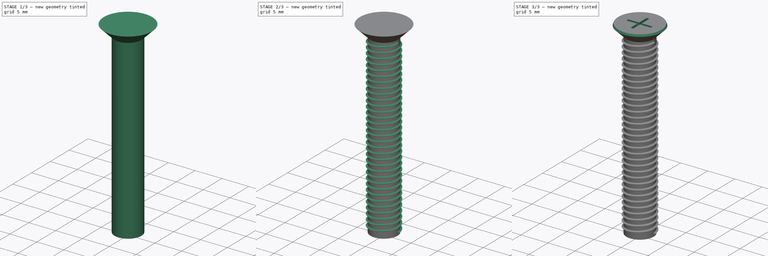
[diagram: build sequence overview — one tinted view per stage of 3, left to right]
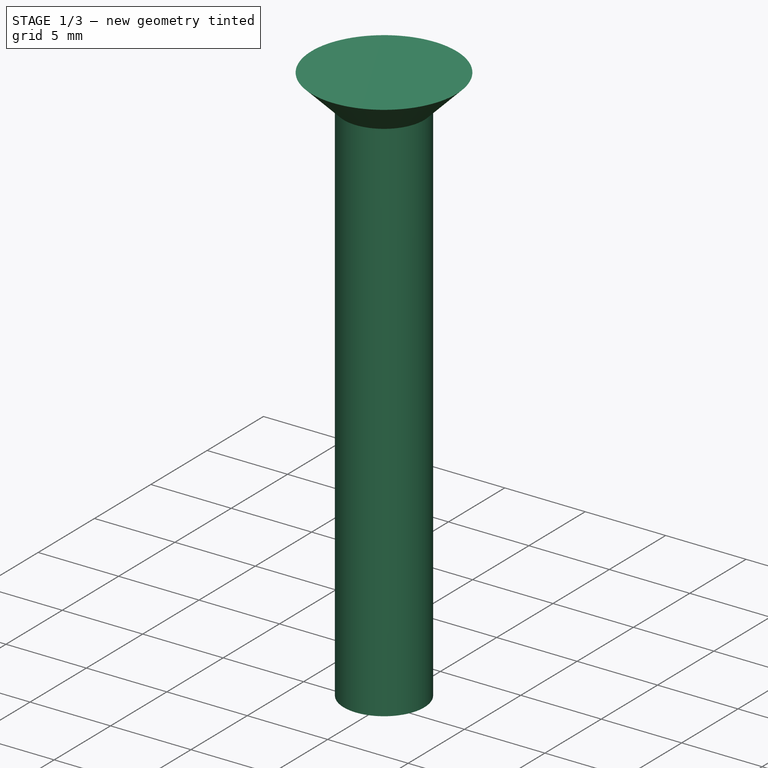
[diagram: stage 1 of 3 — iso view after this stage's code; geometry added in this stage tinted green]
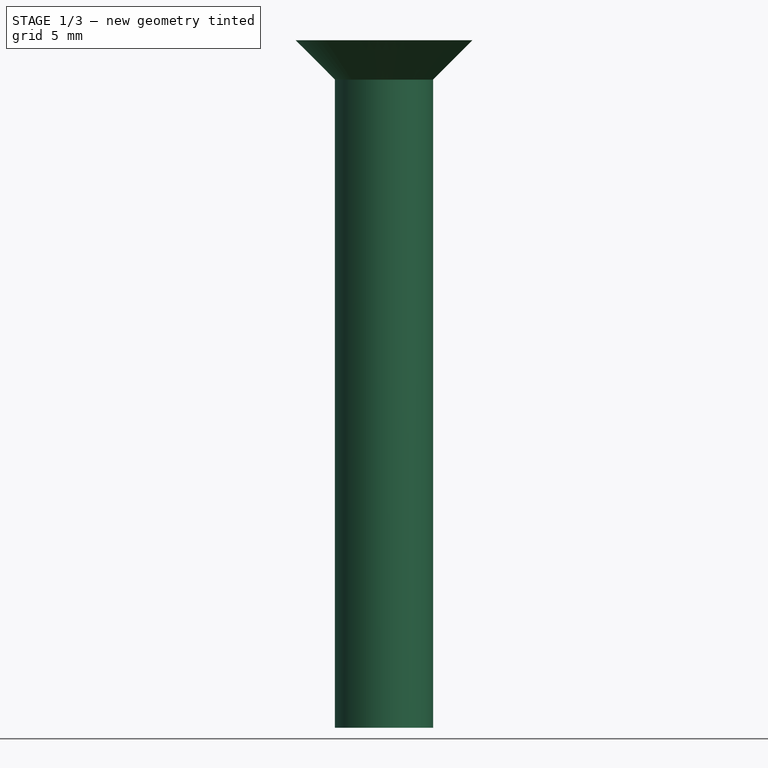
[diagram: stage 1 of 3 — front view after this stage's code; geometry added in this stage tinted green]
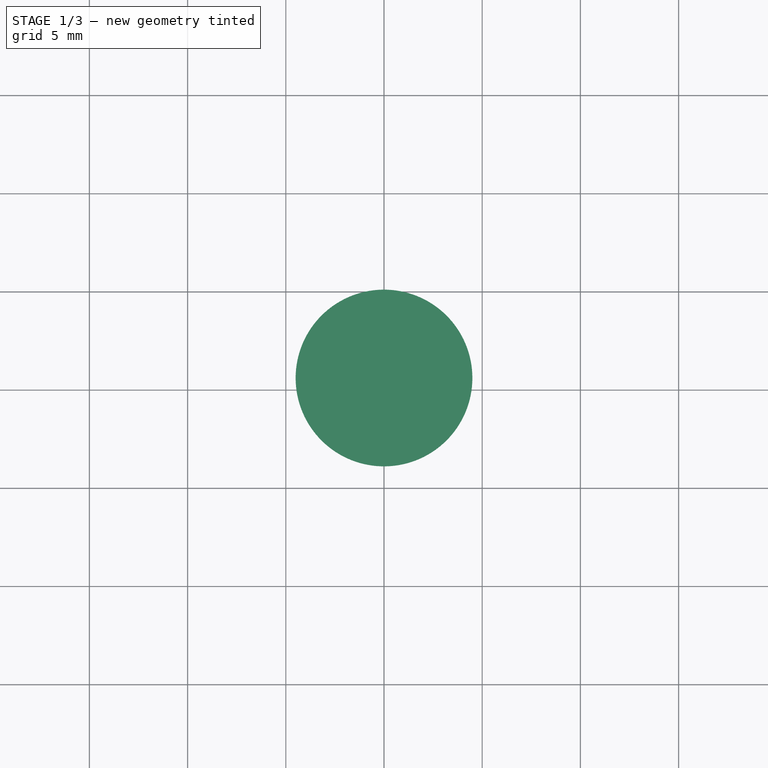
[diagram: stage 1 of 3 — top view after this stage's code; geometry added in this stage tinted green]
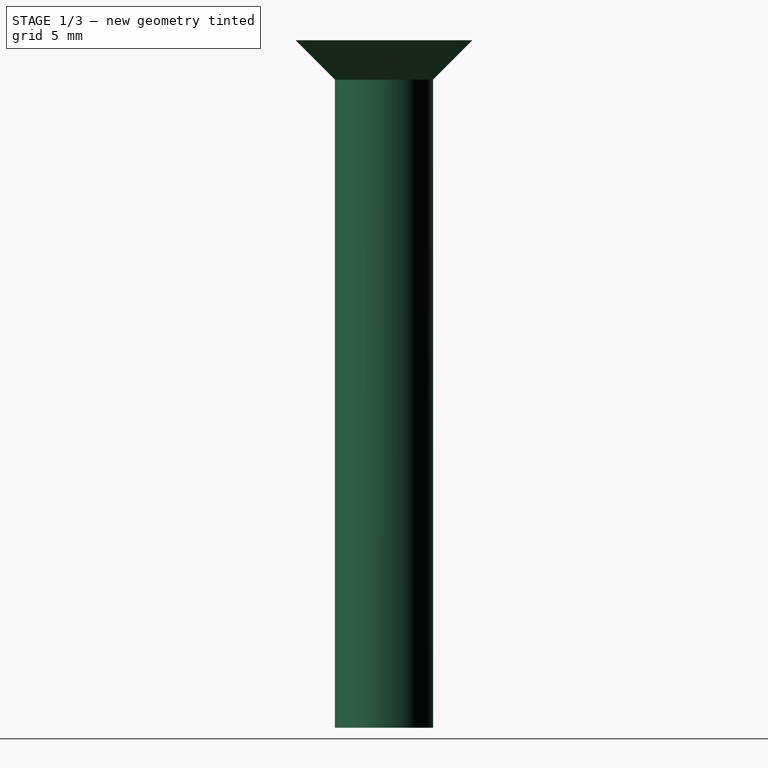
[diagram: stage 1 of 3 — right view after this stage's code; geometry added in this stage tinted green]
FCSTD DOCUMENT  (FreeCAD 0.15R4671 (Git))
Label: 5x33
License: All rights reserved
LicenseURL: http://en.wikipedia.org/wiki/All_rights_reserved
objects: Sketcher::SketchObject×2, Part::MultiFuse×2, Part::Helix×1, Part::Sweep×1, Part::Cylinder×1, Part::Cone×1, PartDesign::Pocket×1, PartDesign::Chamfer×1
note: 11 computed .brp shape members not serialized (recipe doc carries the construction recipe); baked Part::Feature solids carry a one-line shape summary decoded from their .brp

FEATURE [Part::Cylinder] Cylinder
  Angle = 360
  Height = 33
  Placement = pos=(0,0,-0.5) rot=(0,0,1;0rad)
  Radius = 2.5
FEATURE [Part::Cone] Cone
  Angle = 360
  Height = 2
  Placement = pos=(0,0,32.5) rot=(0,0,1;0rad)
  Radius1 = 2.5
  Radius2 = 4.5
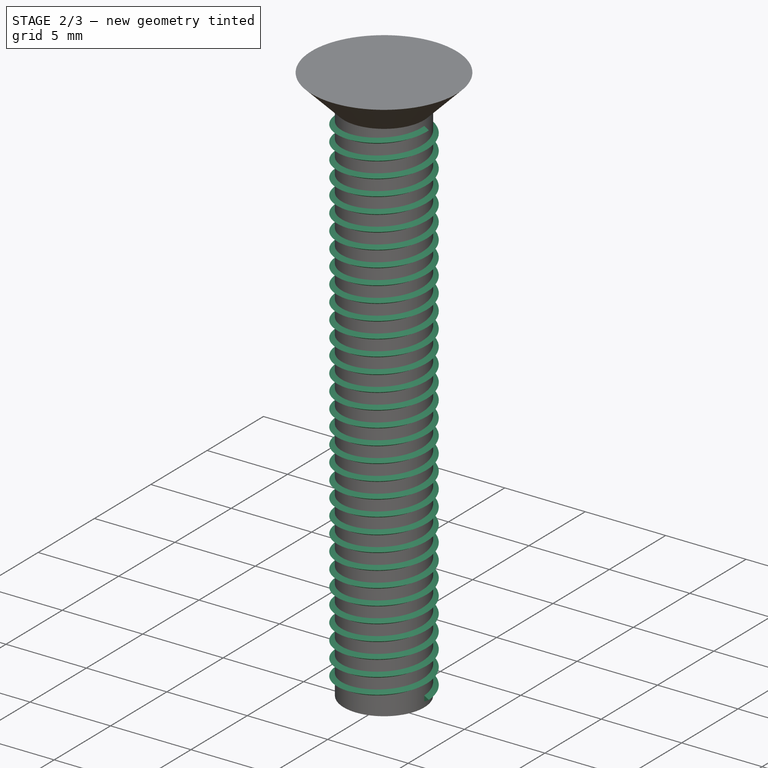
[diagram: stage 2 of 3 — iso view after this stage's code; geometry added in this stage tinted green]
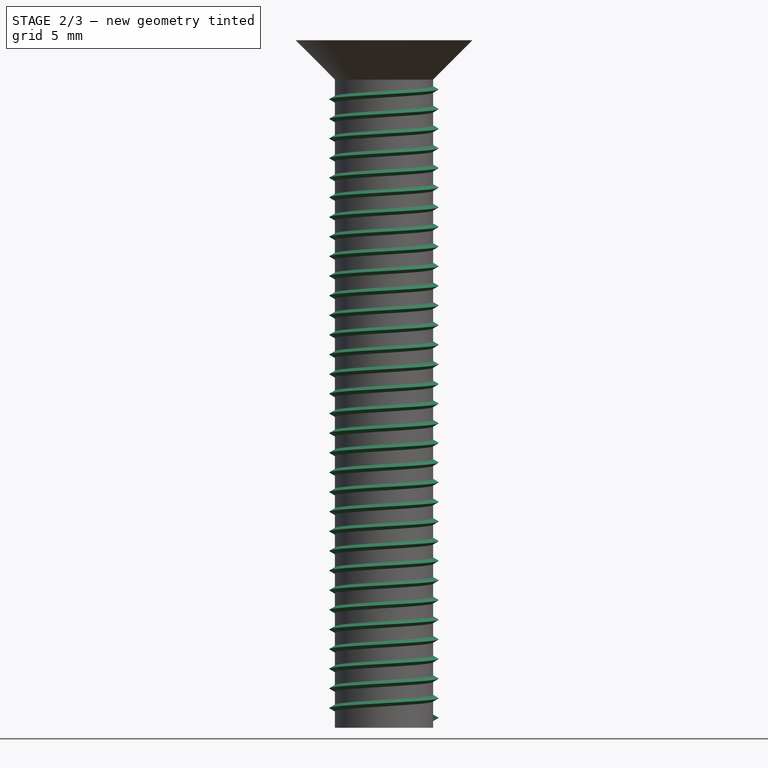
[diagram: stage 2 of 3 — front view after this stage's code; geometry added in this stage tinted green]
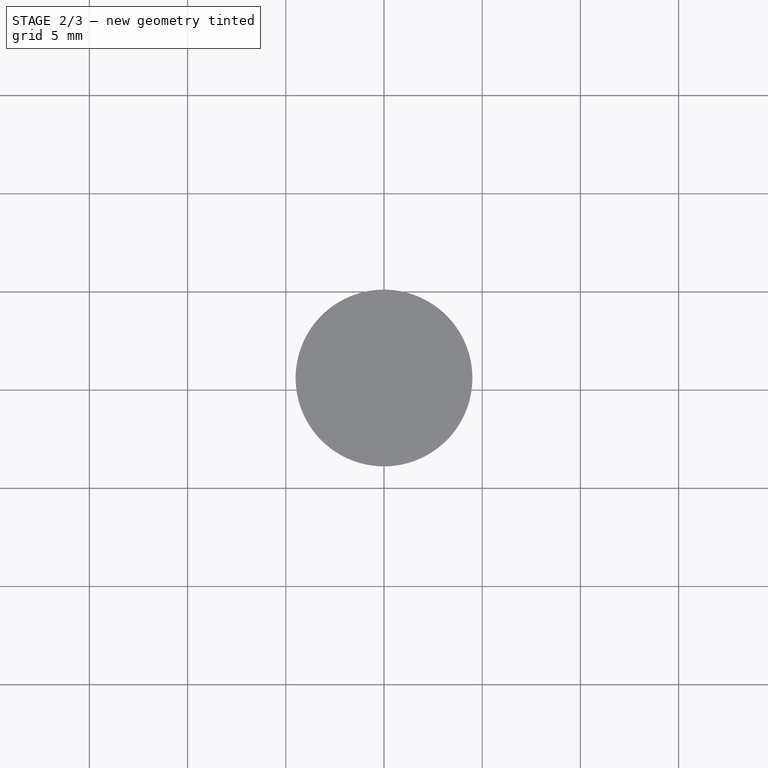
[diagram: stage 2 of 3 — top view after this stage's code; geometry added in this stage tinted green]
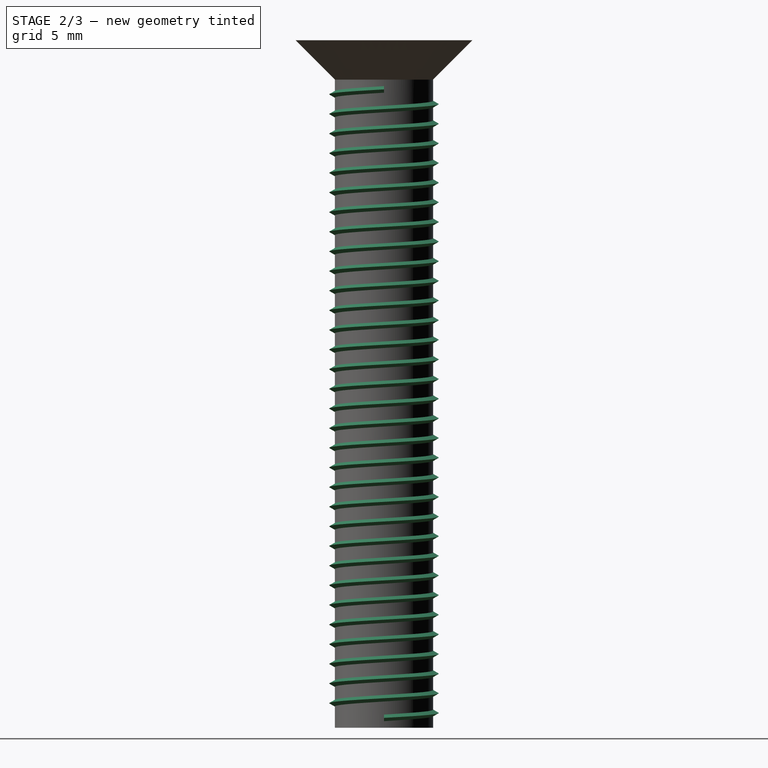
[diagram: stage 2 of 3 — right view after this stage's code; geometry added in this stage tinted green]
FEATURE [Part::Helix] Helix
  Angle = 0
  Height = 32
  LocalCoord = 0
  Pitch = 1
  Radius = 2.5
  Style = 1
FEATURE [Sketcher::SketchObject] Sketch
  Placement = pos=(0,0,0) rot=(1,0,0;1.5708rad)
  sketch-geometry (4):
    g0: LineSegment StartX=2.35566 StartY=0.25 StartZ=0 EndX=2.35566 EndY=-0.25 EndZ=0
    g1: LineSegment StartX=2.35566 StartY=-0.25 StartZ=0 EndX=2.78868 EndY=0 EndZ=0
    g2: LineSegment StartX=2.78868 StartY=0 StartZ=0 EndX=2.35566 EndY=0.25 EndZ=0
    g3: Circle [constr] CenterX=2.5 CenterY=0 CenterZ=0 NormalX=0 NormalY=0 NormalZ=1 Radius=0.288675
  constraints (13):
    c: Coincident(g0,g1)
    c: Coincident(g1,g2)
    c: Coincident(g2,g0)
    c: Equal(g0,g1)
    c: Equal(g0,g2)
    c: PointOnObject(g0,g3)
    c: PointOnObject(g1,g3)
    c: PointOnObject(g2,g3)
    c: PointOnObject(g0,g-1)
    c: PointOnObject(g3,g-1)
    c: PointOnObject(g1,g-1)
    c: DistanceX(g-1,g3) = 2.5
    c: DistanceY(g0) = -0.5
FEATURE [Part::Sweep] Sweep
  Frenet = true
  Sections = -> [Sketch]
  Solid = true
  Spine = -> Helix
  Transition = 1
FEATURE [Part::MultiFuse] Fusion
  Shapes = -> [Cylinder,Sweep]
FEATURE [Part::MultiFuse] Fusion001
  Shapes = -> [Cone,Fusion]
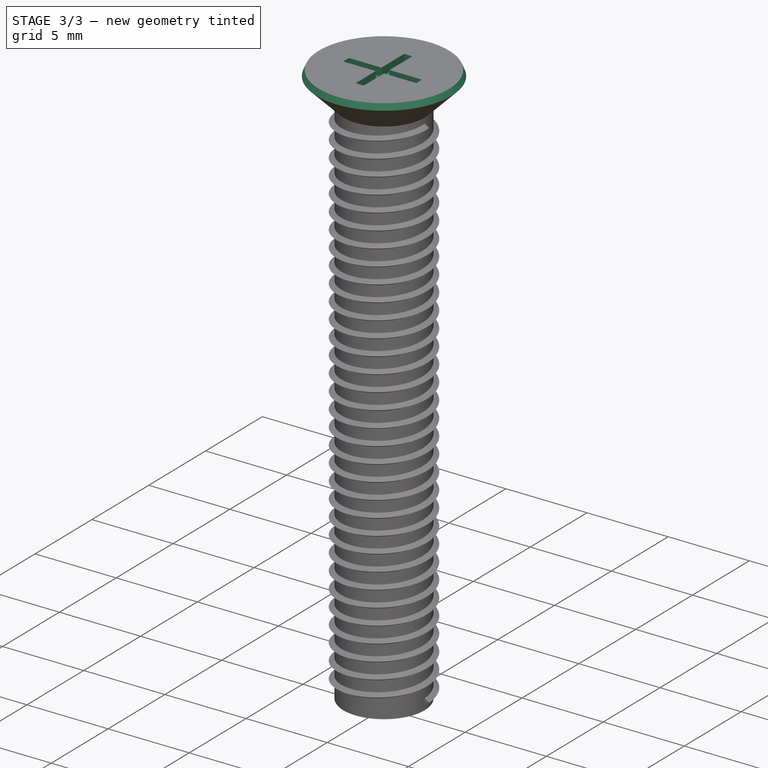
[diagram: stage 3 of 3 — iso view after this stage's code; geometry added in this stage tinted green]
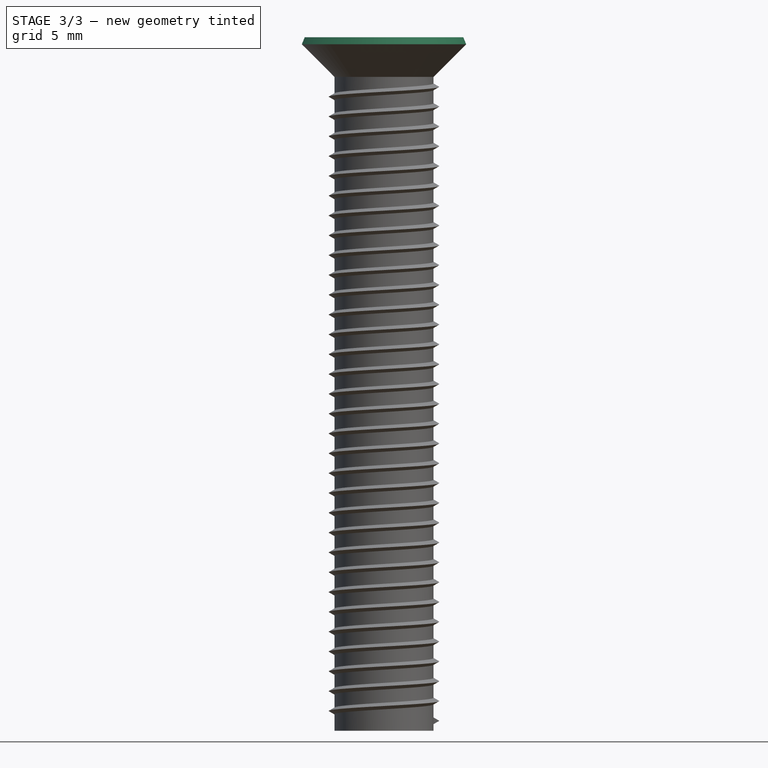
[diagram: stage 3 of 3 — front view after this stage's code; geometry added in this stage tinted green]
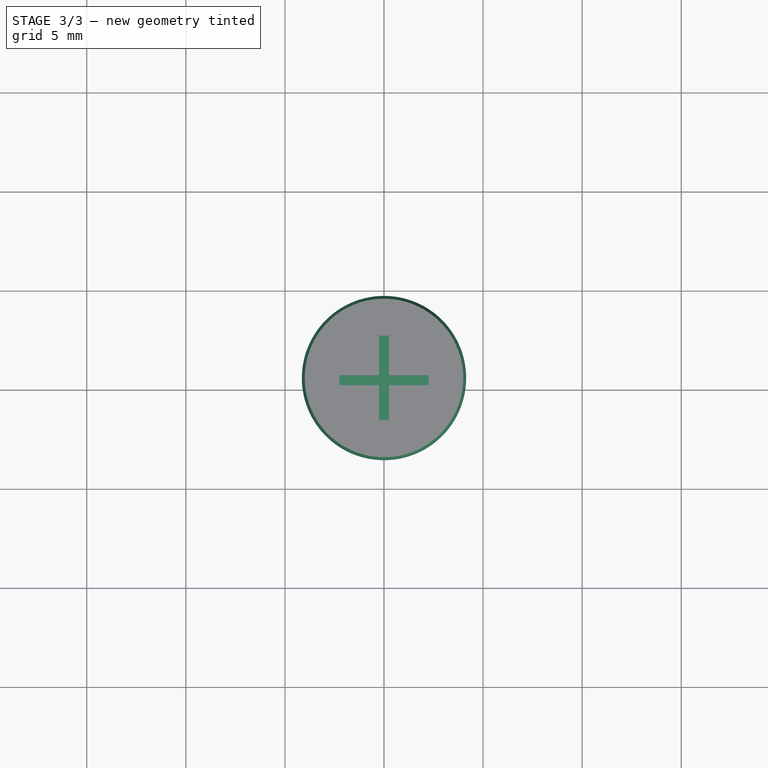
[diagram: stage 3 of 3 — top view after this stage's code; geometry added in this stage tinted green]
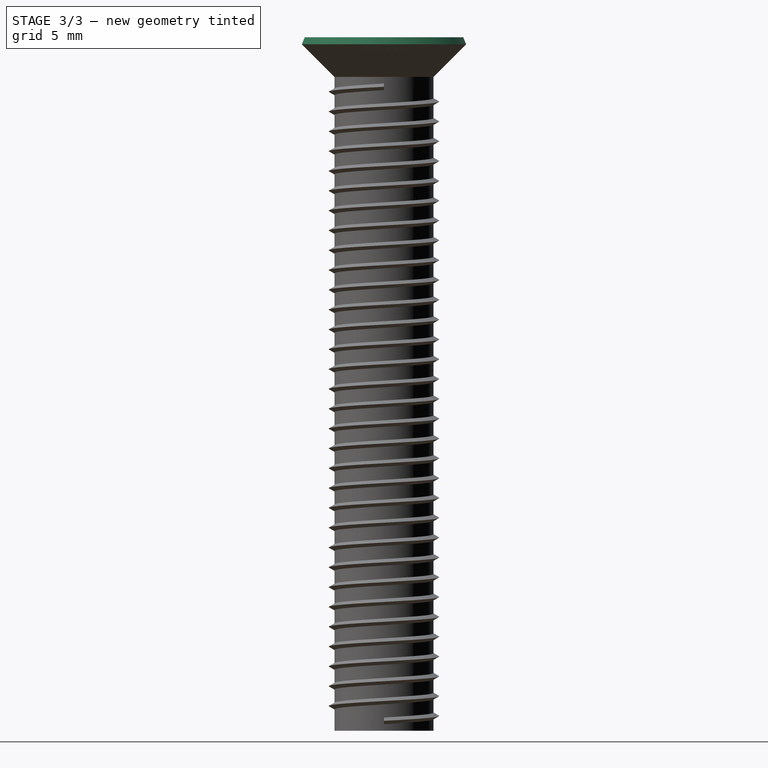
[diagram: stage 3 of 3 — right view after this stage's code; geometry added in this stage tinted green]
FEATURE [Sketcher::SketchObject] Sketch001
  Placement = pos=(0,0,34.5) rot=(0,0,1;0rad)
  Support = -> Fusion001 [Face1]
  sketch-geometry (12):
    g0: LineSegment StartX=-0.25 StartY=2.13058 StartZ=0 EndX=0.25 EndY=2.13058 EndZ=0
    g1: LineSegment StartX=0.25 StartY=2.13058 StartZ=0 EndX=0.25 EndY=0.130584 EndZ=0
    g2: LineSegment StartX=0.25 StartY=0.130584 StartZ=0 EndX=2.25 EndY=0.130584 EndZ=0
    g3: LineSegment StartX=2.25 StartY=0.130584 StartZ=0 EndX=2.25 EndY=-0.369416 EndZ=0
    g4: LineSegment StartX=2.25 StartY=-0.369416 StartZ=0 EndX=0.25 EndY=-0.369416 EndZ=0
    g5: LineSegment StartX=0.25 StartY=-0.369416 StartZ=0 EndX=0.25 EndY=-2.13058 EndZ=0
    g6: LineSegment StartX=0.25 StartY=-2.13058 StartZ=0 EndX=-0.25 EndY=-2.13058 EndZ=0
    g7: LineSegment StartX=-0.25 StartY=-2.13058 StartZ=0 EndX=-0.25 EndY=-0.369416 EndZ=0
    g8: LineSegment StartX=-0.25 StartY=-0.369416 StartZ=0 EndX=-2.25 EndY=-0.369416 EndZ=0
    g9: LineSegment StartX=-2.25 StartY=-0.369416 StartZ=0 EndX=-2.25 EndY=0.130584 EndZ=0
    g10: LineSegment StartX=-2.25 StartY=0.130584 StartZ=0 EndX=-0.25 EndY=0.130584 EndZ=0
    g11: LineSegment StartX=-0.25 StartY=0.130584 StartZ=0 EndX=-0.25 EndY=2.13058 EndZ=0
  constraints (33):
    c: Horizontal(g0)
    c: Coincident(g0,g1)
    c: Vertical(g1)
    c: Coincident(g1,g2)
    c: Horizontal(g2)
    c: Coincident(g2,g3)
    c: Vertical(g3)
    c: Coincident(g3,g4)
    c: Horizontal(g4)
    c: Coincident(g4,g5)
    c: Vertical(g5)
    c: Coincident(g5,g6)
    c: Horizontal(g6)
    c: Coincident(g6,g7)
    c: Vertical(g7)
    c: Coincident(g7,g8)
    c: Coincident(g8,g9)
    c: Vertical(g9)
    c: Coincident(g9,g10)
    c: Coincident(g10,g11)
    c: Vertical(g11)
    c: Coincident(g0,g11)
    c: Horizontal(g10)
    c: Horizontal(g8)
    c: Equal(g9,g3)
    c: Equal(g10,g2)
    c: Equal(g0,g6)
    c: Symmetric(g0,g5,g-1)
    c: Symmetric(g3,g8,g-2)
    c: DistanceX(g0) = 0.5
    c: DistanceY(g3) = -0.5
    c: DistanceY(g1) = -2
    c: DistanceX(g4) = -2
FEATURE [PartDesign::Pocket] Pocket
  Length = 0.5
  Sketch = -> Sketch001
  Type = 0
FEATURE [PartDesign::Chamfer] Chamfer
  Base = -> Pocket [Edge1]
  Size = 0.5
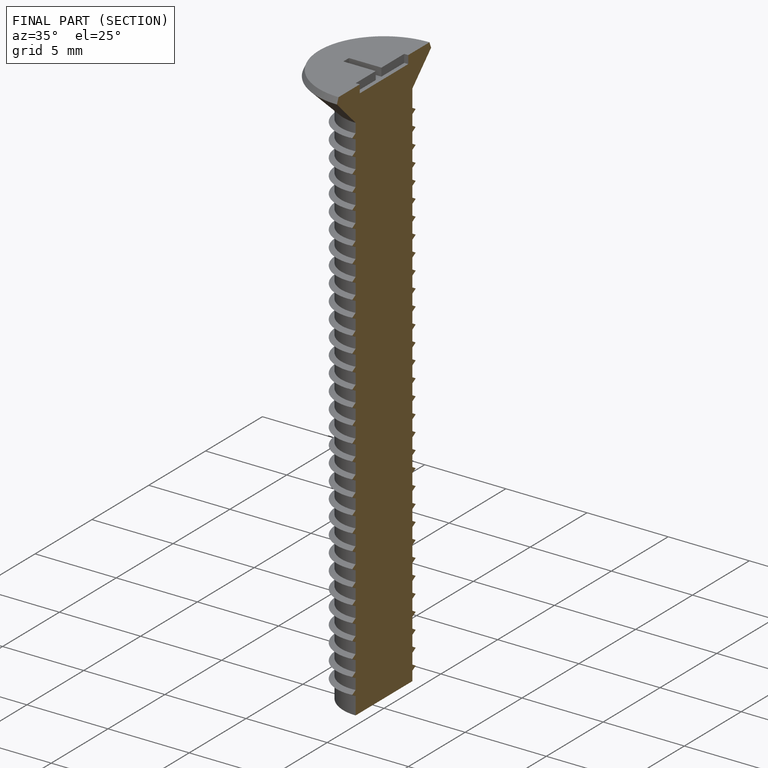
[diagram: finished part — half-section view (interior)]
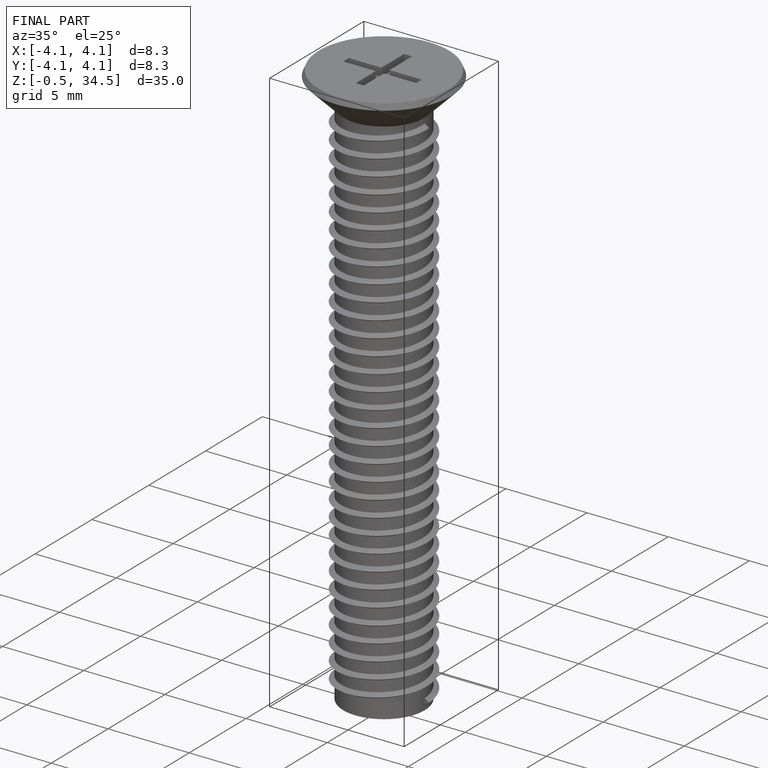
[diagram: finished part — iso view with bounding-box wireframe]
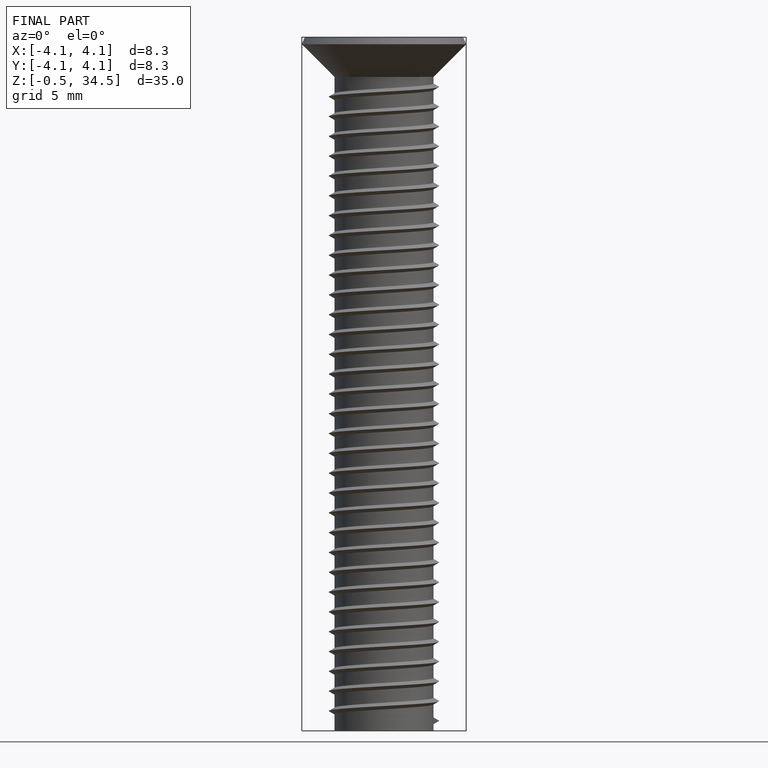
[diagram: finished part — front view with bounding-box wireframe]
